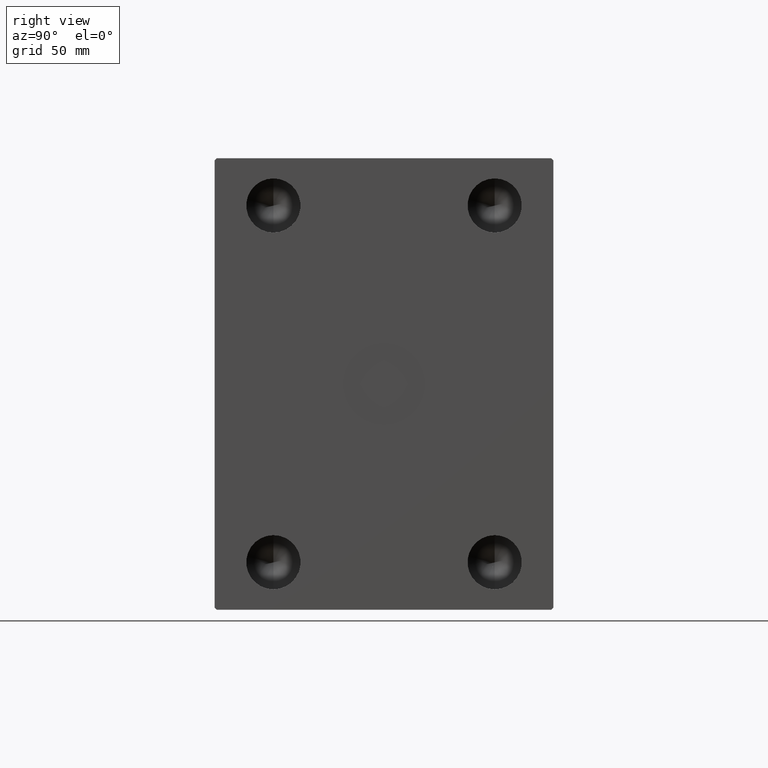
[diagram: clean part render]
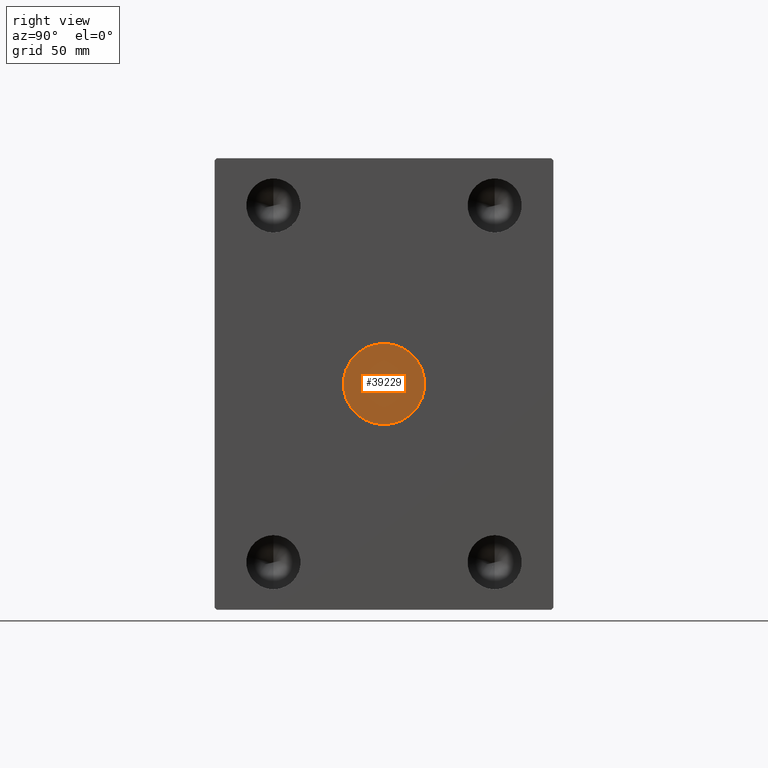
[diagram: same view with one face highlighted and labeled with its STEP entity id]
A machine part, right view. The second image highlights one B-rep face of the part: STEP entity #39229.
In plain terms, the highlighted planar face has unit normal (1, 0, 0).
Its self-contained STEP definition (entity closure, byte-faithful):
#2840 = VERTEX_POINT ( 'NONE', #26228 ) ;
#3410 = CIRCLE ( 'NONE', #16294, 18.00000000000000000 ) ;
#4537 = DIRECTION ( 'NONE',  ( 0.000000000000000000, 0.000000000000000000, -1.000000000000000000 ) ) ;
#7231 = DIRECTION ( 'NONE',  ( 1.000000000000000000, 0.000000000000000000, 0.000000000000000000 ) ) ;
#8244 = DIRECTION ( 'NONE',  ( 1.000000000000000000, 0.000000000000000000, 0.000000000000000000 ) ) ;
#8261 = AXIS2_PLACEMENT_3D ( 'NONE', #42869, #18599, #25321 ) ;
#9461 = ORIENTED_EDGE ( 'NONE', *, *, #40062, .T. ) ;
#9691 = CIRCLE ( 'NONE', #29785, 18.00000000000000000 ) ;
#13088 = ORIENTED_EDGE ( 'NONE', *, *, #27339, .T. ) ;
#16294 = AXIS2_PLACEMENT_3D ( 'NONE', #18121, #8244, #35636 ) ;
#18121 = CARTESIAN_POINT ( 'NONE',  ( 187.7999999999999829, 0.000000000000000000, 0.000000000000000000 ) ) ;
#18599 = DIRECTION ( 'NONE',  ( 1.000000000000000000, 0.000000000000000000, 0.000000000000000000 ) ) ;
#20235 = CARTESIAN_POINT ( 'NONE',  ( 187.7999999999999829, 0.000000000000000000, 0.000000000000000000 ) ) ;
#24889 = FACE_OUTER_BOUND ( 'NONE', #26734, .T. ) ;
#25321 = DIRECTION ( 'NONE',  ( 0.000000000000000000, 0.000000000000000000, -1.000000000000000000 ) ) ;
#26228 = CARTESIAN_POINT ( 'NONE',  ( 187.7999999999999829, 0.000000000000000000, -18.00000000000000000 ) ) ;
#26734 = EDGE_LOOP ( 'NONE', ( #13088, #9461 ) ) ;
#27339 = EDGE_CURVE ( 'NONE', #2840, #30951, #3410, .T. ) ;
#29151 = PLANE ( 'NONE',  #8261 ) ;
#29785 = AXIS2_PLACEMENT_3D ( 'NONE', #20235, #7231, #4537 ) ;
#30951 = VERTEX_POINT ( 'NONE', #36442 ) ;
#35636 = DIRECTION ( 'NONE',  ( 0.000000000000000000, 0.000000000000000000, -1.000000000000000000 ) ) ;
#36442 = CARTESIAN_POINT ( 'NONE',  ( 187.7999999999999829, 2.204364238465235428E-15, 18.00000000000000000 ) ) ;
#39229 = ADVANCED_FACE ( 'NONE', ( #24889 ), #29151, .T. ) ;
#40062 = EDGE_CURVE ( 'NONE', #30951, #2840, #9691, .T. ) ;
#42869 = CARTESIAN_POINT ( 'NONE',  ( 187.7999999999999829, 0.000000000000000000, 0.000000000000000000 ) ) ;